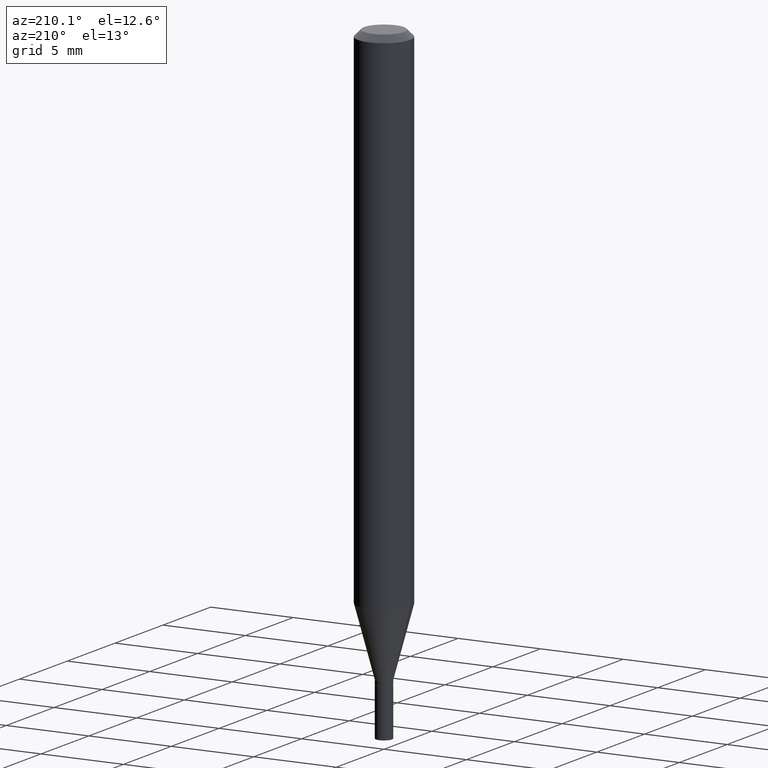
[diagram: clean part render]
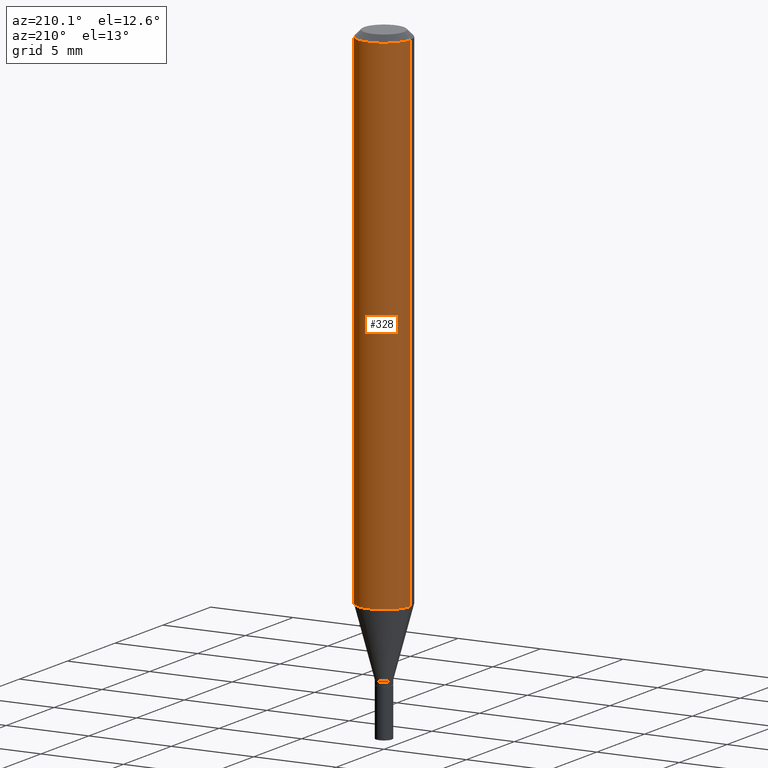
[diagram: same view with one face highlighted and labeled with its STEP entity id]
A machine part, auxiliary view. The second image highlights one B-rep face of the part: STEP entity #328.
In plain terms, the highlighted cylindrical surface (edge-blend (fillet) strip) has radius 1.5875 mm, axis along (-0, 0, 1).
Its self-contained STEP definition (entity closure, byte-faithful):
#7 = CARTESIAN_POINT ( 'NONE',  ( 0.06250000000000000000, -4.364351673553916694E-16, 3.047610484872459871E-30 ) ) ;
#17 = ORIENTED_EDGE ( 'NONE', *, *, #279, .F. ) ;
#30 = VERTEX_POINT ( 'NONE', #452 ) ;
#37 = VECTOR ( 'NONE', #401, 39.37007874015748143 ) ;
#38 = ORIENTED_EDGE ( 'NONE', *, *, #251, .F. ) ;
#45 = DIRECTION ( 'NONE',  ( 1.000000000000000000, -6.982962677686262766E-15, 0.000000000000000000 ) ) ;
#51 = LINE ( 'NONE', #7, #37 ) ;
#61 = CARTESIAN_POINT ( 'NONE',  ( 0.06250000000000000000, -4.888073874380388472E-16, -0.01499999999999999944 ) ) ;
#84 = ORIENTED_EDGE ( 'NONE', *, *, #375, .T. ) ;
#91 = AXIS2_PLACEMENT_3D ( 'NONE', #154, #307, #364 ) ;
#109 = CARTESIAN_POINT ( 'NONE',  ( -0.06250000000000000000, 4.440892098500626162E-16, -3.074334431409316114E-30 ) ) ;
#125 = VECTOR ( 'NONE', #229, 39.37007874015748143 ) ;
#130 = VERTEX_POINT ( 'NONE', #61 ) ;
#134 = DIRECTION ( 'NONE',  ( 1.000000000000000000, -6.982962677686266711E-15, 4.876176775795935793E-29 ) ) ;
#148 = CARTESIAN_POINT ( 'NONE',  ( 0.000000000000000000, 0.000000000000000000, 0.000000000000000000 ) ) ;
#154 = CARTESIAN_POINT ( 'NONE',  ( 3.668203209277705088E-31, -5.237222008264718399E-17, -0.01499999999999999944 ) ) ;
#159 = VERTEX_POINT ( 'NONE', #235 ) ;
#172 = CIRCLE ( 'NONE', #335, 0.06250000000000000000 ) ;
#175 = EDGE_LOOP ( 'NONE', ( #234, #84, #17, #38 ) ) ;
#189 = CYLINDRICAL_SURFACE ( 'NONE', #443, 0.06250000000000000000 ) ;
#229 = DIRECTION ( 'NONE',  ( -2.445468806185136877E-29, 3.491481338843145188E-15, 1.000000000000000000 ) ) ;
#234 = ORIENTED_EDGE ( 'NONE', *, *, #325, .T. ) ;
#235 = CARTESIAN_POINT ( 'NONE',  ( 0.06250000000000000000, -4.673891709468070691E-15, -1.213655789870754953 ) ) ;
#251 = EDGE_CURVE ( 'NONE', #159, #130, #51, .T. ) ;
#260 = DIRECTION ( 'NONE',  ( -2.445468806185136597E-29, 3.491481338843145583E-15, 1.000000000000000000 ) ) ;
#261 = CARTESIAN_POINT ( 'NONE',  ( -0.06250000000000000000, -1.700825171247600434E-15, -0.01499999999999999944 ) ) ;
#264 = CARTESIAN_POINT ( 'NONE',  ( 2.967957375574913989E-29, -4.237456542112679022E-15, -1.213655789870754953 ) ) ;
#270 = LINE ( 'NONE', #109, #125 ) ;
#279 = EDGE_CURVE ( 'NONE', #130, #409, #366, .T. ) ;
#307 = DIRECTION ( 'NONE',  ( -2.445468806185136597E-29, 3.491481338843145583E-15, 1.000000000000000000 ) ) ;
#325 = EDGE_CURVE ( 'NONE', #159, #30, #172, .T. ) ;
#328 = ADVANCED_FACE ( 'NONE', ( #397 ), #189, .T. ) ;
#335 = AXIS2_PLACEMENT_3D ( 'NONE', #264, #260, #45 ) ;
#356 = DIRECTION ( 'NONE',  ( -2.445468806185136597E-29, 3.491481338843145583E-15, 1.000000000000000000 ) ) ;
#364 = DIRECTION ( 'NONE',  ( 1.000000000000000000, -6.982962677686266711E-15, 0.000000000000000000 ) ) ;
#366 = CIRCLE ( 'NONE', #91, 0.06250000000000000000 ) ;
#375 = EDGE_CURVE ( 'NONE', #30, #409, #270, .T. ) ;
#397 = FACE_OUTER_BOUND ( 'NONE', #175, .T. ) ;
#401 = DIRECTION ( 'NONE',  ( -2.445468806185136877E-29, 3.491481338843145188E-15, 1.000000000000000000 ) ) ;
#409 = VERTEX_POINT ( 'NONE', #261 ) ;
#443 = AXIS2_PLACEMENT_3D ( 'NONE', #148, #356, #134 ) ;
#452 = CARTESIAN_POINT ( 'NONE',  ( -0.06250000000000000000, -3.793367332262617194E-15, -1.213655789870754953 ) ) ;